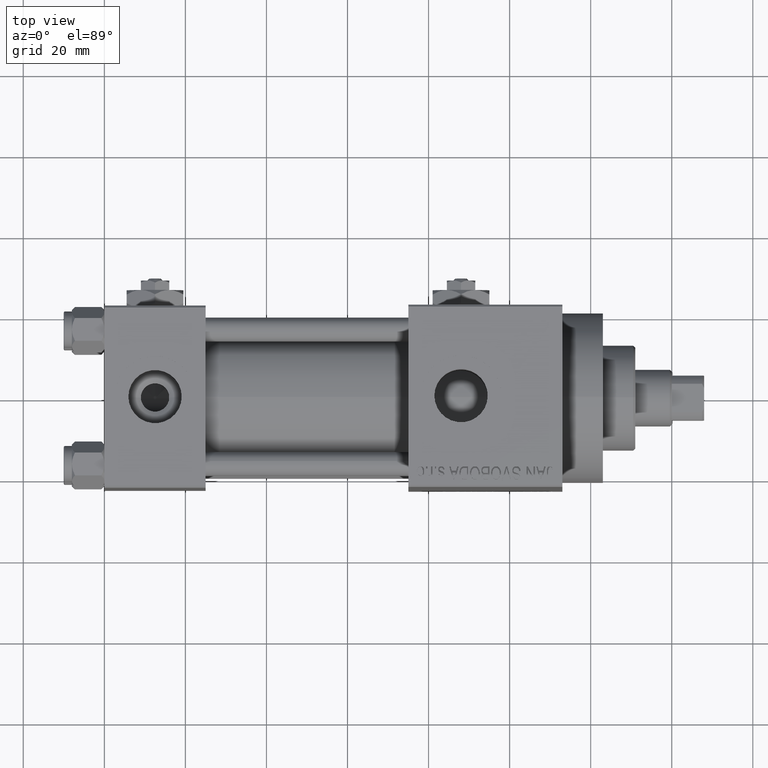
[diagram: clean part render]
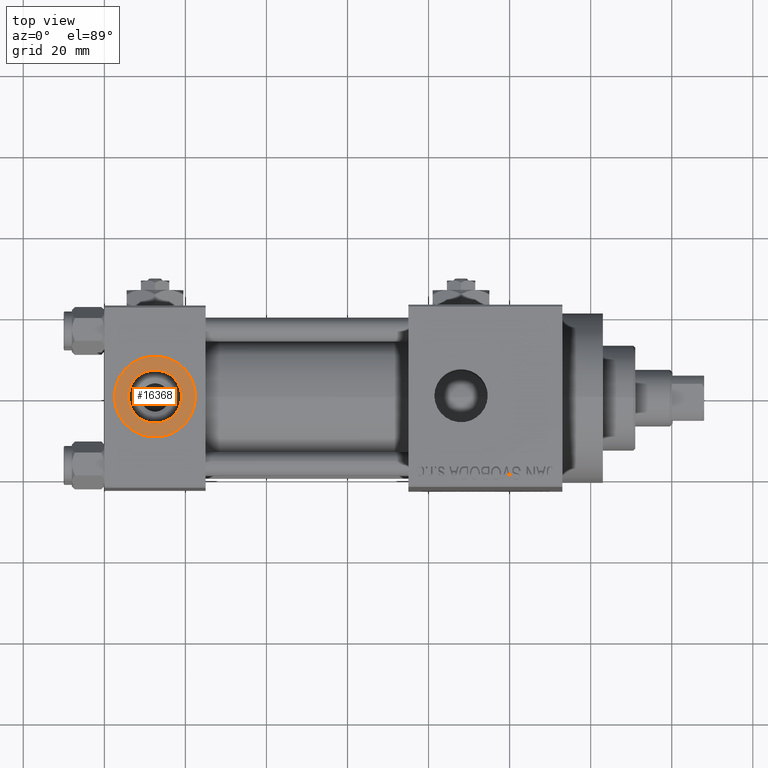
[diagram: same view with one face highlighted and labeled with its STEP entity id]
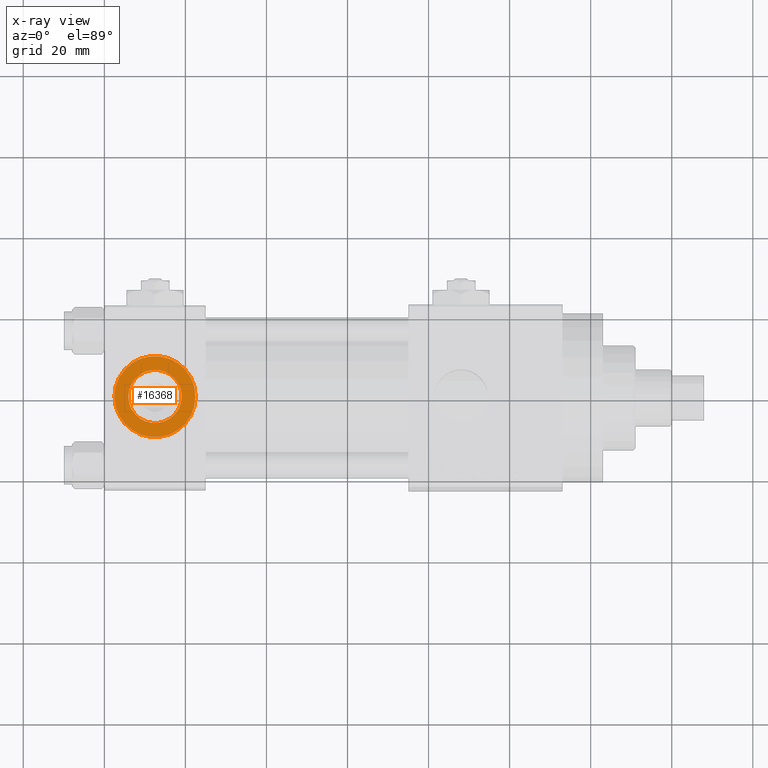
[diagram: x-ray of the same camera — body ghosted, the highlighted face saturated]
A machine part, top view. The second image highlights one B-rep face of the part: STEP entity #16368.
The next image is the same camera in x-ray: the body ghosted, the highlighted face saturated — about 0% of this face is hidden behind the body in this view.
In plain terms, the highlighted planar face has unit normal (0, 0, 1).
Its self-contained STEP definition (entity closure, byte-faithful):
#327 = DIRECTION ( 'NONE',  ( 1.000000000000000000, 0.000000000000000000, 0.000000000000000000 ) ) ;
#1276 = FACE_OUTER_BOUND ( 'NONE', #32421, .T. ) ;
#1329 = DIRECTION ( 'NONE',  ( 1.000000000000000000, 0.000000000000000000, 0.000000000000000000 ) ) ;
#1416 = CARTESIAN_POINT ( 'NONE',  ( 12.50000000000000000, -1.734723475976807094E-15, 22.30000000000000071 ) ) ;
#2542 = ORIENTED_EDGE ( 'NONE', *, *, #10297, .F. ) ;
#7997 = DIRECTION ( 'NONE',  ( 0.000000000000000000, 0.000000000000000000, 1.000000000000000000 ) ) ;
#8192 = CARTESIAN_POINT ( 'NONE',  ( 5.920000000000002593, -9.289058821378490386E-16, 22.30000000000000071 ) ) ;
#8472 = FACE_BOUND ( 'NONE', #9671, .T. ) ;
#9671 = EDGE_LOOP ( 'NONE', ( #2542, #46158 ) ) ;
#10297 = EDGE_CURVE ( 'NONE', #13259, #48931, #42017, .T. ) ;
#11252 = CARTESIAN_POINT ( 'NONE',  ( 12.50000000000000000, -1.734723475976807094E-15, 22.30000000000000071 ) ) ;
#11651 = AXIS2_PLACEMENT_3D ( 'NONE', #1416, #46618, #27962 ) ;
#11961 = ORIENTED_EDGE ( 'NONE', *, *, #19843, .T. ) ;
#13259 = VERTEX_POINT ( 'NONE', #34674 ) ;
#13343 = CARTESIAN_POINT ( 'NONE',  ( 2.500000000000003997, -5.100766768294543310E-16, 22.30000000000000071 ) ) ;
#14015 = CIRCLE ( 'NONE', #11651, 6.579999999999999183 ) ;
#14452 = CIRCLE ( 'NONE', #16084, 9.999999999999998224 ) ;
#15264 = DIRECTION ( 'NONE',  ( 0.000000000000000000, 0.000000000000000000, 1.000000000000000000 ) ) ;
#15932 = PLANE ( 'NONE',  #22391 ) ;
#16084 = AXIS2_PLACEMENT_3D ( 'NONE', #18508, #15264, #34408 ) ;
#16368 = ADVANCED_FACE ( 'NONE', ( #8472, #1276 ), #15932, .T. ) ;
#16977 = EDGE_CURVE ( 'NONE', #46875, #43552, #14452, .T. ) ;
#17460 = ORIENTED_EDGE ( 'NONE', *, *, #16977, .T. ) ;
#18225 = AXIS2_PLACEMENT_3D ( 'NONE', #11252, #38093, #327 ) ;
#18508 = CARTESIAN_POINT ( 'NONE',  ( 12.50000000000000000, -1.734723475976807094E-15, 22.30000000000000071 ) ) ;
#19843 = EDGE_CURVE ( 'NONE', #43552, #46875, #25649, .T. ) ;
#22391 = AXIS2_PLACEMENT_3D ( 'NONE', #38542, #7997, #27331 ) ;
#22493 = AXIS2_PLACEMENT_3D ( 'NONE', #38840, #23672, #1329 ) ;
#23672 = DIRECTION ( 'NONE',  ( 0.000000000000000000, 0.000000000000000000, 1.000000000000000000 ) ) ;
#25649 = CIRCLE ( 'NONE', #22493, 9.999999999999998224 ) ;
#27031 = EDGE_CURVE ( 'NONE', #48931, #13259, #14015, .T. ) ;
#27331 = DIRECTION ( 'NONE',  ( 1.000000000000000000, 0.000000000000000000, -0.000000000000000000 ) ) ;
#27962 = DIRECTION ( 'NONE',  ( 1.000000000000000000, 0.000000000000000000, 0.000000000000000000 ) ) ;
#32421 = EDGE_LOOP ( 'NONE', ( #11961, #17460 ) ) ;
#34408 = DIRECTION ( 'NONE',  ( 1.000000000000000000, 0.000000000000000000, 0.000000000000000000 ) ) ;
#34674 = CARTESIAN_POINT ( 'NONE',  ( 19.07999999999999829, -1.734723475976807094E-15, 22.30000000000000071 ) ) ;
#38093 = DIRECTION ( 'NONE',  ( 0.000000000000000000, 0.000000000000000000, 1.000000000000000000 ) ) ;
#38542 = CARTESIAN_POINT ( 'NONE',  ( 12.50000000000000000, -1.734723475976807094E-15, 22.30000000000000071 ) ) ;
#38840 = CARTESIAN_POINT ( 'NONE',  ( 12.50000000000000000, -1.734723475976807094E-15, 22.30000000000000071 ) ) ;
#42017 = CIRCLE ( 'NONE', #18225, 6.579999999999999183 ) ;
#43085 = CARTESIAN_POINT ( 'NONE',  ( 22.50000000000000000, -1.734723475976807094E-15, 22.30000000000000071 ) ) ;
#43552 = VERTEX_POINT ( 'NONE', #43085 ) ;
#46158 = ORIENTED_EDGE ( 'NONE', *, *, #27031, .F. ) ;
#46618 = DIRECTION ( 'NONE',  ( 0.000000000000000000, 0.000000000000000000, 1.000000000000000000 ) ) ;
#46875 = VERTEX_POINT ( 'NONE', #13343 ) ;
#48931 = VERTEX_POINT ( 'NONE', #8192 ) ;